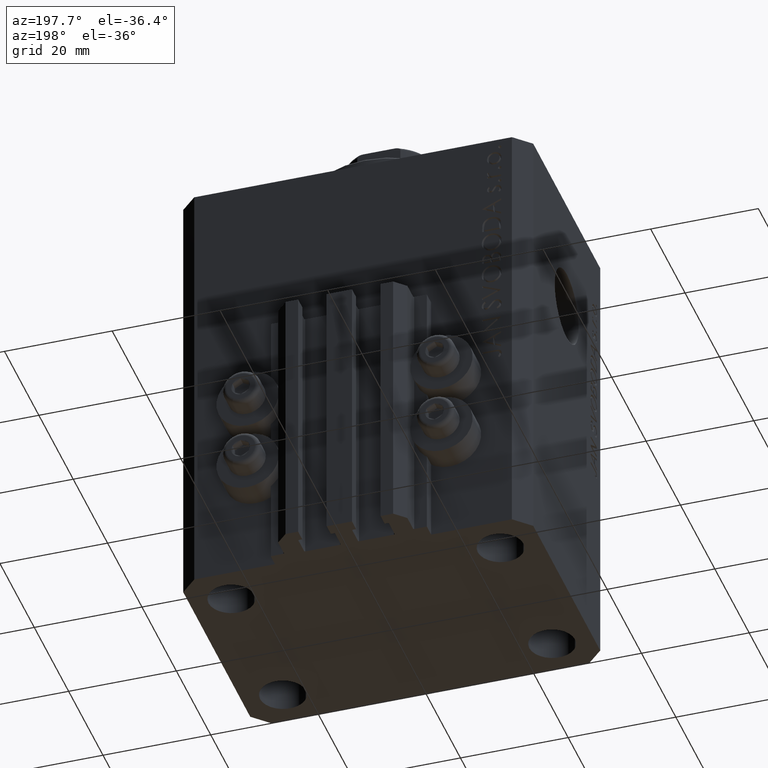
[diagram: clean part render]
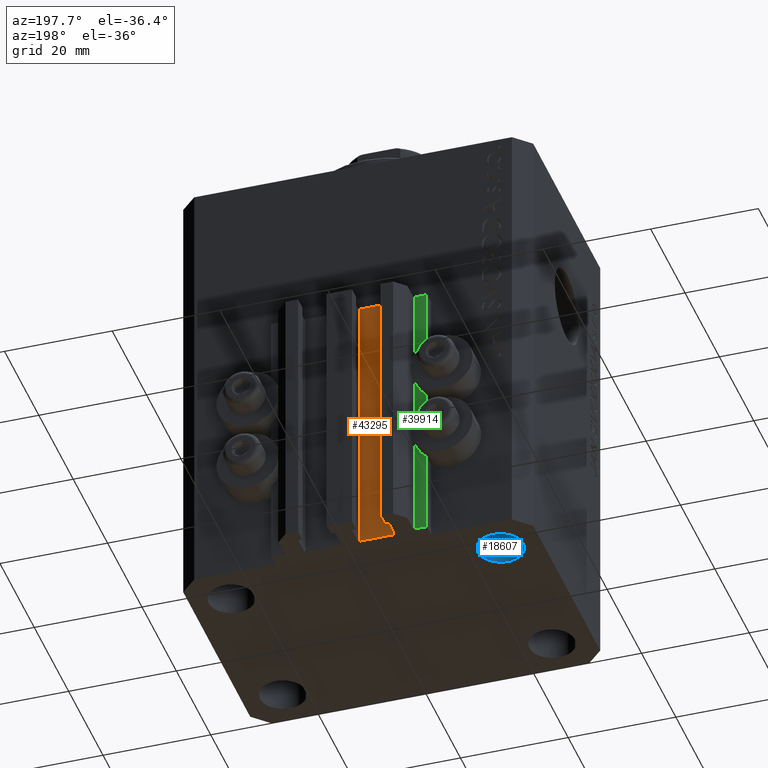
[diagram: same view with three faces highlighted in distinct colors, each labeled with its STEP entity id]
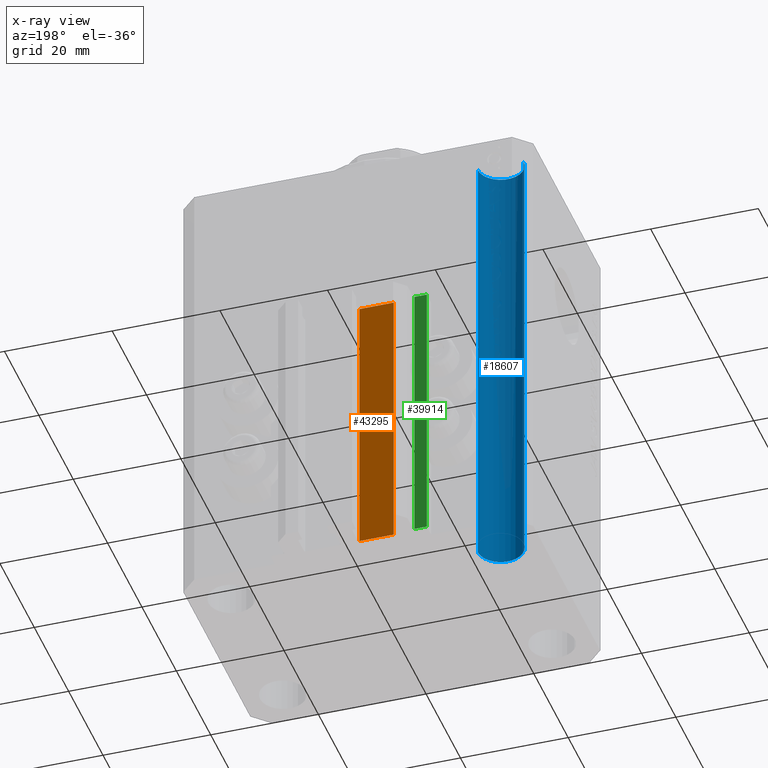
[diagram: x-ray of the same camera — body ghosted, the three highlighted faces saturated]
A machine part, auxiliary view with three faces highlighted in distinct colors.
The next image is the same camera in x-ray (body ghosted, the three faces saturated) — at least one of them is partly hidden behind the body in this view.
Their STEP definitions:

[orange] entity #43295 — the highlighted planar face has unit normal (0, 1, 0).
#1106 = EDGE_CURVE ( 'NONE', #5332, #22550, #20469, .T. ) ;
#3303 = LINE ( 'NONE', #38883, #32639 ) ;
#3792 = LINE ( 'NONE', #18345, #17996 ) ;
#4245 = ORIENTED_EDGE ( 'NONE', *, *, #24671, .F. ) ;
#5332 = VERTEX_POINT ( 'NONE', #34643 ) ;
#5659 = PLANE ( 'NONE',  #31834 ) ;
#8340 = ORIENTED_EDGE ( 'NONE', *, *, #1106, .T. ) ;
#12357 = DIRECTION ( 'NONE',  ( 0.000000000000000000, 1.000000000000000000, -0.000000000000000000 ) ) ;
#12389 = CARTESIAN_POINT ( 'NONE',  ( -8.199999999999999289, 24.49999999999949551, -84.00000000000000000 ) ) ;
#13575 = DIRECTION ( 'NONE',  ( -1.000000000000000000, 0.000000000000000000, 0.000000000000000000 ) ) ;
#15942 = DIRECTION ( 'NONE',  ( 0.000000000000000000, 0.000000000000000000, 1.000000000000000000 ) ) ;
#16516 = ORIENTED_EDGE ( 'NONE', *, *, #31915, .T. ) ;
#17068 = VECTOR ( 'NONE', #19531, 1000.000000000000000 ) ;
#17218 = ORIENTED_EDGE ( 'NONE', *, *, #20734, .F. ) ;
#17228 = EDGE_LOOP ( 'NONE', ( #17218, #4245, #16516, #8340 ) ) ;
#17996 = VECTOR ( 'NONE', #32906, 1000.000000000000000 ) ;
#18345 = CARTESIAN_POINT ( 'NONE',  ( -1.800000000000000933, 24.49999999999949551, -33.00000000000000000 ) ) ;
#19531 = DIRECTION ( 'NONE',  ( 0.000000000000000000, 0.000000000000000000, 1.000000000000000000 ) ) ;
#20469 = LINE ( 'NONE', #12389, #17068 ) ;
#20734 = EDGE_CURVE ( 'NONE', #39950, #22550, #3792, .T. ) ;
#21386 = CARTESIAN_POINT ( 'NONE',  ( -8.199999999999999289, 24.49999999999949551, -33.00000000000000000 ) ) ;
#22550 = VERTEX_POINT ( 'NONE', #21386 ) ;
#23745 = LINE ( 'NONE', #35193, #41600 ) ;
#23780 = FACE_OUTER_BOUND ( 'NONE', #17228, .T. ) ;
#24671 = EDGE_CURVE ( 'NONE', #32371, #39950, #23745, .T. ) ;
#31560 = CARTESIAN_POINT ( 'NONE',  ( -1.800000000000000933, 24.49999999999949551, -33.00000000000000000 ) ) ;
#31834 = AXIS2_PLACEMENT_3D ( 'NONE', #37643, #12357, #15942 ) ;
#31915 = EDGE_CURVE ( 'NONE', #32371, #5332, #3303, .T. ) ;
#32371 = VERTEX_POINT ( 'NONE', #38068 ) ;
#32639 = VECTOR ( 'NONE', #13575, 1000.000000000000000 ) ;
#32906 = DIRECTION ( 'NONE',  ( -1.000000000000000000, 0.000000000000000000, 0.000000000000000000 ) ) ;
#34643 = CARTESIAN_POINT ( 'NONE',  ( -8.199999999999999289, 24.49999999999949551, -84.00000000000000000 ) ) ;
#34964 = DIRECTION ( 'NONE',  ( 0.000000000000000000, 0.000000000000000000, 1.000000000000000000 ) ) ;
#35193 = CARTESIAN_POINT ( 'NONE',  ( -1.800000000000000933, 24.49999999999949551, -84.00000000000000000 ) ) ;
#37643 = CARTESIAN_POINT ( 'NONE',  ( -1.800000000000000933, 24.49999999999949551, -84.00000000000000000 ) ) ;
#38068 = CARTESIAN_POINT ( 'NONE',  ( -1.800000000000000933, 24.49999999999949551, -84.00000000000000000 ) ) ;
#38883 = CARTESIAN_POINT ( 'NONE',  ( -1.800000000000000933, 24.49999999999949551, -84.00000000000000000 ) ) ;
#39950 = VERTEX_POINT ( 'NONE', #31560 ) ;
#41600 = VECTOR ( 'NONE', #34964, 1000.000000000000000 ) ;
#43295 = ADVANCED_FACE ( 'NONE', ( #23780 ), #5659, .T. ) ;

[blue] entity #18607 — the highlighted cylindrical surface (edge-blend (fillet) strip) has radius 4.25 mm, axis along (0, 0, 1).
#31 = CARTESIAN_POINT ( 'NONE',  ( -20.74999999997862687, 14.99999999999999645, -84.00000000000000000 ) ) ;
#524 = DIRECTION ( 'NONE',  ( -0.000000000000000000, -0.000000000000000000, 1.000000000000000000 ) ) ;
#3246 = FACE_OUTER_BOUND ( 'NONE', #43243, .T. ) ;
#5832 = CARTESIAN_POINT ( 'NONE',  ( -20.74999999997862687, 14.99999999999999645, 0.000000000000000000 ) ) ;
#6401 = AXIS2_PLACEMENT_3D ( 'NONE', #11704, #22646, #44615 ) ;
#7217 = EDGE_CURVE ( 'NONE', #25427, #20101, #30320, .T. ) ;
#8985 = CIRCLE ( 'NONE', #22689, 4.250000000021375790 ) ;
#9583 = VERTEX_POINT ( 'NONE', #26087 ) ;
#9685 = VERTEX_POINT ( 'NONE', #38002 ) ;
#10186 = DIRECTION ( 'NONE',  ( 1.000000000000000000, 0.000000000000000000, 0.000000000000000000 ) ) ;
#11704 = CARTESIAN_POINT ( 'NONE',  ( -25.00000000000000000, 14.99999999999999645, -84.00000000000000000 ) ) ;
#16550 = EDGE_CURVE ( 'NONE', #25427, #9583, #23907, .T. ) ;
#17086 = CARTESIAN_POINT ( 'NONE',  ( -25.00000000000000000, 14.99999999999999645, -96.02081528028550395 ) ) ;
#17329 = DIRECTION ( 'NONE',  ( -0.000000000000000000, -0.000000000000000000, 1.000000000000000000 ) ) ;
#17454 = ORIENTED_EDGE ( 'NONE', *, *, #29061, .T. ) ;
#18607 = ADVANCED_FACE ( 'NONE', ( #3246 ), #39054, .F. ) ;
#19145 = VECTOR ( 'NONE', #36857, 1000.000000000000000 ) ;
#19872 = ORIENTED_EDGE ( 'NONE', *, *, #38915, .T. ) ;
#20101 = VERTEX_POINT ( 'NONE', #5832 ) ;
#21350 = LINE ( 'NONE', #28752, #19145 ) ;
#21734 = ORIENTED_EDGE ( 'NONE', *, *, #16550, .T. ) ;
#22003 = VECTOR ( 'NONE', #524, 1000.000000000000000 ) ;
#22193 = DIRECTION ( 'NONE',  ( 1.000000000000000000, 0.000000000000000000, 0.000000000000000000 ) ) ;
#22646 = DIRECTION ( 'NONE',  ( -0.000000000000000000, -0.000000000000000000, -1.000000000000000000 ) ) ;
#22689 = AXIS2_PLACEMENT_3D ( 'NONE', #29588, #25772, #22193 ) ;
#23907 = CIRCLE ( 'NONE', #6401, 4.250000000021375790 ) ;
#25427 = VERTEX_POINT ( 'NONE', #31 ) ;
#25772 = DIRECTION ( 'NONE',  ( 0.000000000000000000, 0.000000000000000000, 1.000000000000000000 ) ) ;
#26087 = CARTESIAN_POINT ( 'NONE',  ( -29.25000000002137668, 14.99999999999999645, -84.00000000000000000 ) ) ;
#28752 = CARTESIAN_POINT ( 'NONE',  ( -29.25000000002137668, 14.99999999999999645, -96.02081528028550395 ) ) ;
#29061 = EDGE_CURVE ( 'NONE', #9685, #20101, #8985, .T. ) ;
#29588 = CARTESIAN_POINT ( 'NONE',  ( -25.00000000000000000, 14.99999999999999645, 0.000000000000000000 ) ) ;
#30320 = LINE ( 'NONE', #44886, #22003 ) ;
#31827 = ORIENTED_EDGE ( 'NONE', *, *, #7217, .F. ) ;
#36857 = DIRECTION ( 'NONE',  ( -0.000000000000000000, -0.000000000000000000, 1.000000000000000000 ) ) ;
#37724 = AXIS2_PLACEMENT_3D ( 'NONE', #17086, #17329, #10186 ) ;
#38002 = CARTESIAN_POINT ( 'NONE',  ( -29.25000000002137668, 14.99999999999999645, 0.000000000000000000 ) ) ;
#38915 = EDGE_CURVE ( 'NONE', #9583, #9685, #21350, .T. ) ;
#39054 = CYLINDRICAL_SURFACE ( 'NONE', #37724, 4.250000000021375790 ) ;
#43243 = EDGE_LOOP ( 'NONE', ( #21734, #19872, #17454, #31827 ) ) ;
#44615 = DIRECTION ( 'NONE',  ( 1.000000000000000000, 0.000000000000000000, 0.000000000000000000 ) ) ;
#44886 = CARTESIAN_POINT ( 'NONE',  ( -20.74999999997862687, 14.99999999999999645, -96.02081528028550395 ) ) ;

[green] entity #39914 — the highlighted planar face has unit normal (0, 1, 0).
#2236 = DIRECTION ( 'NONE',  ( -1.000000000000000000, 1.508455196501571232E-15, 0.000000000000000000 ) ) ;
#2389 = ORIENTED_EDGE ( 'NONE', *, *, #35548, .F. ) ;
#2740 = CARTESIAN_POINT ( 'NONE',  ( -12.20000000000000107, 24.99999999999948841, -84.00000000000000000 ) ) ;
#3115 = DIRECTION ( 'NONE',  ( 0.000000000000000000, 0.000000000000000000, 1.000000000000000000 ) ) ;
#3648 = VECTOR ( 'NONE', #31646, 1000.000000000000000 ) ;
#5078 = EDGE_CURVE ( 'NONE', #11204, #40944, #20672, .T. ) ;
#5864 = EDGE_LOOP ( 'NONE', ( #2389, #9549, #9131, #40626 ) ) ;
#8623 = VERTEX_POINT ( 'NONE', #34463 ) ;
#9131 = ORIENTED_EDGE ( 'NONE', *, *, #5078, .T. ) ;
#9549 = ORIENTED_EDGE ( 'NONE', *, *, #40819, .F. ) ;
#11204 = VERTEX_POINT ( 'NONE', #2740 ) ;
#12393 = CARTESIAN_POINT ( 'NONE',  ( -14.50000000000000000, 24.99999999999949196, -84.00000000000000000 ) ) ;
#13120 = DIRECTION ( 'NONE',  ( -1.000000000000000000, 1.508455196501571429E-15, 0.000000000000000000 ) ) ;
#17095 = CARTESIAN_POINT ( 'NONE',  ( -12.20000000000000107, 24.99999999999948841, -84.00000000000000000 ) ) ;
#17245 = CARTESIAN_POINT ( 'NONE',  ( -12.20000000000000107, 24.99999999999948841, -84.00000000000000000 ) ) ;
#19078 = AXIS2_PLACEMENT_3D ( 'NONE', #17245, #31797, #2236 ) ;
#20672 = LINE ( 'NONE', #17095, #3648 ) ;
#22233 = DIRECTION ( 'NONE',  ( 0.000000000000000000, 0.000000000000000000, 1.000000000000000000 ) ) ;
#22693 = LINE ( 'NONE', #32977, #31780 ) ;
#24125 = EDGE_CURVE ( 'NONE', #40944, #8623, #22693, .T. ) ;
#24801 = LINE ( 'NONE', #31333, #30522 ) ;
#28225 = FACE_OUTER_BOUND ( 'NONE', #5864, .T. ) ;
#30030 = CARTESIAN_POINT ( 'NONE',  ( -12.20000000000000107, 24.99999999999948841, -33.00000000000000000 ) ) ;
#30522 = VECTOR ( 'NONE', #3115, 1000.000000000000000 ) ;
#31333 = CARTESIAN_POINT ( 'NONE',  ( -12.20000000000000107, 24.99999999999948841, -84.00000000000000000 ) ) ;
#31646 = DIRECTION ( 'NONE',  ( -1.000000000000000000, 1.508455196501571429E-15, 0.000000000000000000 ) ) ;
#31780 = VECTOR ( 'NONE', #22233, 1000.000000000000000 ) ;
#31797 = DIRECTION ( 'NONE',  ( 1.508455196501571232E-15, 1.000000000000000000, -0.000000000000000000 ) ) ;
#32977 = CARTESIAN_POINT ( 'NONE',  ( -14.50000000000000000, 24.99999999999949196, -84.00000000000000000 ) ) ;
#34463 = CARTESIAN_POINT ( 'NONE',  ( -14.50000000000000000, 24.99999999999949196, -33.00000000000000000 ) ) ;
#34590 = CARTESIAN_POINT ( 'NONE',  ( -12.20000000000000107, 24.99999999999948841, -33.00000000000000000 ) ) ;
#35548 = EDGE_CURVE ( 'NONE', #44346, #8623, #41999, .T. ) ;
#39914 = ADVANCED_FACE ( 'NONE', ( #28225 ), #42784, .T. ) ;
#40388 = VECTOR ( 'NONE', #13120, 1000.000000000000000 ) ;
#40626 = ORIENTED_EDGE ( 'NONE', *, *, #24125, .T. ) ;
#40819 = EDGE_CURVE ( 'NONE', #11204, #44346, #24801, .T. ) ;
#40944 = VERTEX_POINT ( 'NONE', #12393 ) ;
#41999 = LINE ( 'NONE', #34590, #40388 ) ;
#42784 = PLANE ( 'NONE',  #19078 ) ;
#44346 = VERTEX_POINT ( 'NONE', #30030 ) ;